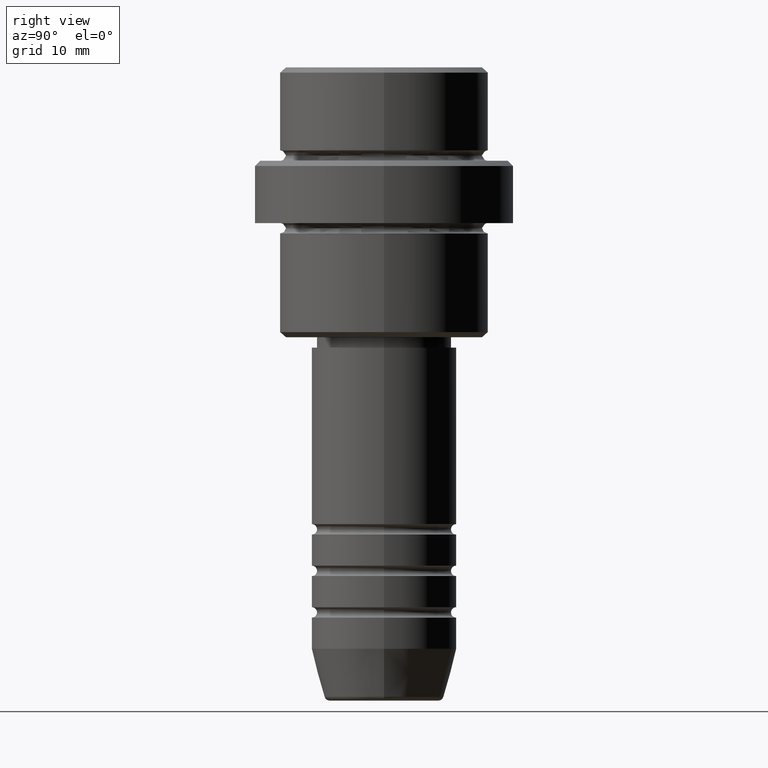
[diagram: clean part render]
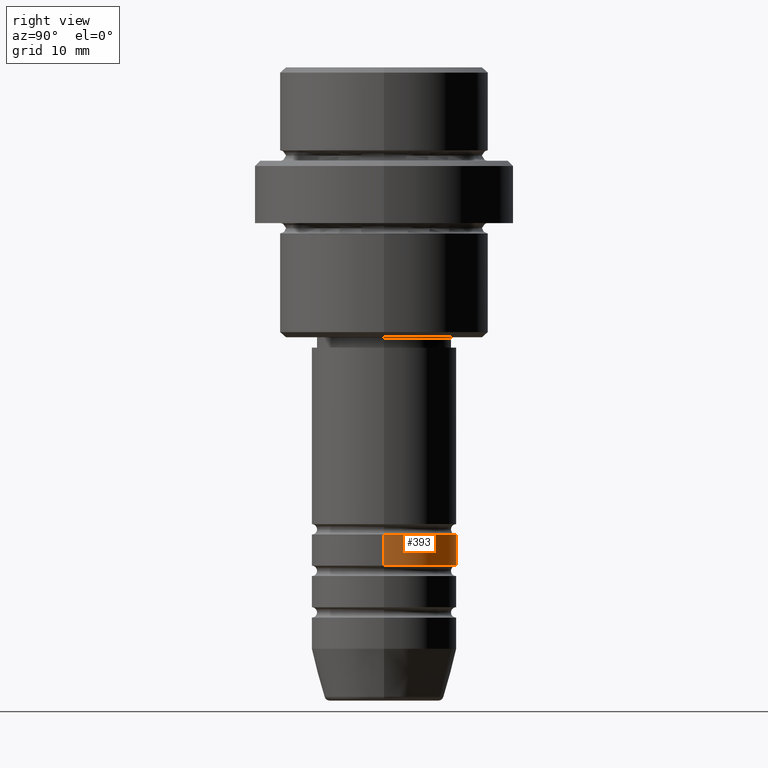
[diagram: same view with one face highlighted and labeled with its STEP entity id]
A machine part, right view. The second image highlights one B-rep face of the part: STEP entity #393.
In plain terms, the highlighted cylindrical surface (partial cylindrical patch) has radius 7 mm, axis along (-0, -0, 1).
Its self-contained STEP definition (entity closure, byte-faithful):
#21 = ORIENTED_EDGE ( 'NONE', *, *, #285, .F. ) ;
#35 = DIRECTION ( 'NONE',  ( 1.000000000000000000, 0.000000000000000000, 0.000000000000000000 ) ) ;
#56 = VERTEX_POINT ( 'NONE', #1313 ) ;
#78 = DIRECTION ( 'NONE',  ( 1.000000000000000000, 0.000000000000000000, 0.000000000000000000 ) ) ;
#145 = DIRECTION ( 'NONE',  ( -0.000000000000000000, -0.000000000000000000, 1.000000000000000000 ) ) ;
#167 = CARTESIAN_POINT ( 'NONE',  ( 7.000000000000000000, 0.000000000000000000, 0.000000000000000000 ) ) ;
#169 = EDGE_CURVE ( 'NONE', #1156, #56, #1414, .T. ) ;
#192 = VECTOR ( 'NONE', #145, 1000.000000000000000 ) ;
#196 = VERTEX_POINT ( 'NONE', #261 ) ;
#261 = CARTESIAN_POINT ( 'NONE',  ( 7.000000000000000000, 0.000000000000000000, -47.99999999999989342 ) ) ;
#285 = EDGE_CURVE ( 'NONE', #643, #56, #1270, .T. ) ;
#287 = CIRCLE ( 'NONE', #927, 7.000000000000000000 ) ;
#355 = AXIS2_PLACEMENT_3D ( 'NONE', #1048, #848, #78 ) ;
#393 = ADVANCED_FACE ( 'NONE', ( #837 ), #720, .T. ) ;
#470 = CARTESIAN_POINT ( 'NONE',  ( 7.000000000000000000, 0.000000000000000000, -44.99999999999989342 ) ) ;
#482 = EDGE_LOOP ( 'NONE', ( #1106, #797, #21, #773 ) ) ;
#489 = LINE ( 'NONE', #167, #192 ) ;
#509 = DIRECTION ( 'NONE',  ( -0.000000000000000000, -0.000000000000000000, 1.000000000000000000 ) ) ;
#566 = CARTESIAN_POINT ( 'NONE',  ( -7.000000000000000000, 8.572527594031473190E-16, 0.000000000000000000 ) ) ;
#600 = CARTESIAN_POINT ( 'NONE',  ( -7.000000000000000000, 8.572527594031473190E-16, -47.99999999999989342 ) ) ;
#633 = CARTESIAN_POINT ( 'NONE',  ( 0.000000000000000000, 0.000000000000000000, -47.99999999999989342 ) ) ;
#643 = VERTEX_POINT ( 'NONE', #470 ) ;
#685 = CARTESIAN_POINT ( 'NONE',  ( 0.000000000000000000, 0.000000000000000000, -44.99999999999989342 ) ) ;
#720 = CYLINDRICAL_SURFACE ( 'NONE', #355, 7.000000000000000000 ) ;
#773 = ORIENTED_EDGE ( 'NONE', *, *, #1114, .F. ) ;
#797 = ORIENTED_EDGE ( 'NONE', *, *, #169, .T. ) ;
#837 = FACE_OUTER_BOUND ( 'NONE', #482, .T. ) ;
#848 = DIRECTION ( 'NONE',  ( -0.000000000000000000, -0.000000000000000000, 1.000000000000000000 ) ) ;
#858 = DIRECTION ( 'NONE',  ( 1.000000000000000000, 0.000000000000000000, 0.000000000000000000 ) ) ;
#927 = AXIS2_PLACEMENT_3D ( 'NONE', #633, #509, #858 ) ;
#1019 = DIRECTION ( 'NONE',  ( -0.000000000000000000, -0.000000000000000000, 1.000000000000000000 ) ) ;
#1048 = CARTESIAN_POINT ( 'NONE',  ( 0.000000000000000000, 0.000000000000000000, 0.000000000000000000 ) ) ;
#1064 = AXIS2_PLACEMENT_3D ( 'NONE', #685, #1019, #35 ) ;
#1106 = ORIENTED_EDGE ( 'NONE', *, *, #1323, .T. ) ;
#1114 = EDGE_CURVE ( 'NONE', #196, #643, #489, .T. ) ;
#1129 = VECTOR ( 'NONE', #1394, 1000.000000000000000 ) ;
#1156 = VERTEX_POINT ( 'NONE', #600 ) ;
#1270 = CIRCLE ( 'NONE', #1064, 7.000000000000000000 ) ;
#1313 = CARTESIAN_POINT ( 'NONE',  ( -7.000000000000000000, 8.572527594031473190E-16, -44.99999999999989342 ) ) ;
#1323 = EDGE_CURVE ( 'NONE', #196, #1156, #287, .T. ) ;
#1394 = DIRECTION ( 'NONE',  ( -0.000000000000000000, -0.000000000000000000, 1.000000000000000000 ) ) ;
#1414 = LINE ( 'NONE', #566, #1129 ) ;